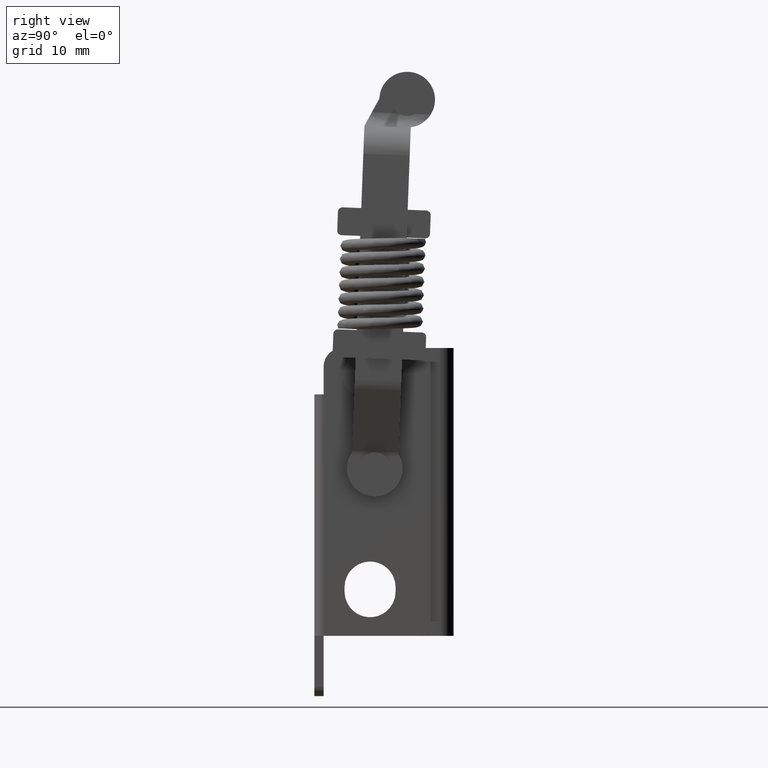
[diagram: clean part render]
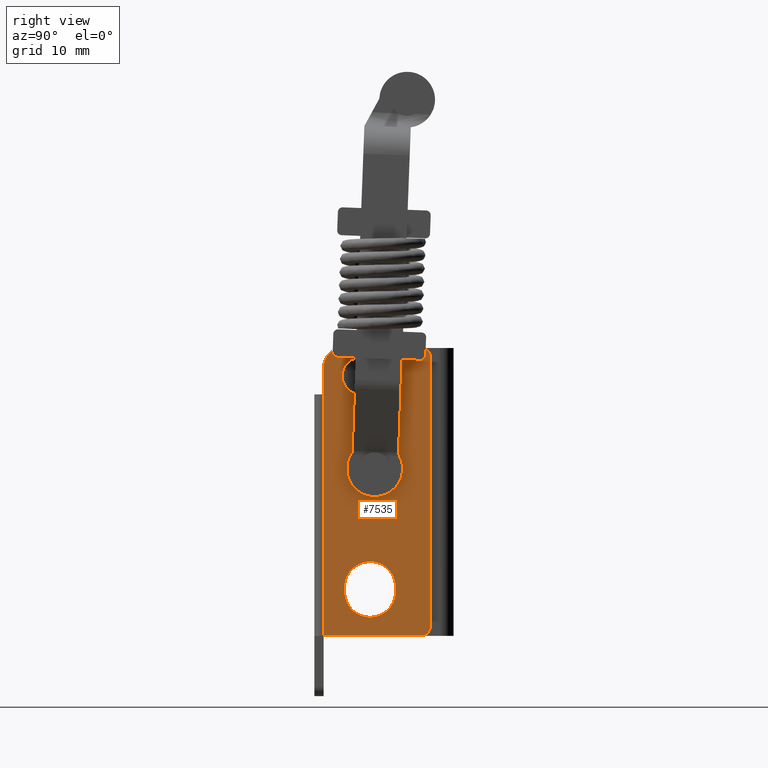
[diagram: same view with one face highlighted and labeled with its STEP entity id]
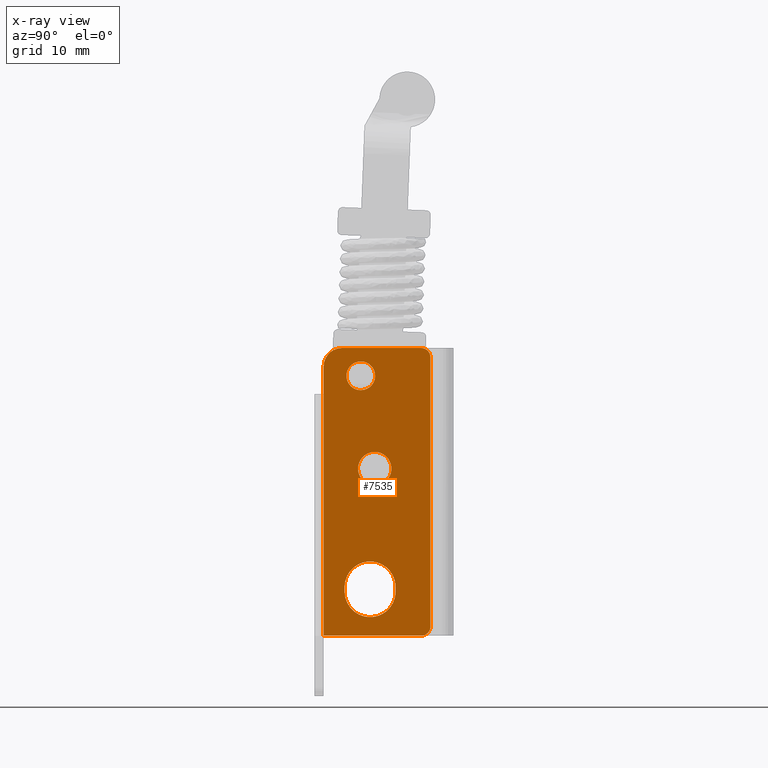
[diagram: x-ray of the same camera — body ghosted, the highlighted face saturated]
A machine part, right view. The second image highlights one B-rep face of the part: STEP entity #7535.
The next image is the same camera in x-ray: the body ghosted, the highlighted face saturated — about 0% of this face is hidden behind the body in this view.
In plain terms, the highlighted face is a freeform B-spline surface patch.
Its self-contained STEP definition (entity closure, byte-faithful):
#5597=CARTESIAN_POINT('',(8.999999999979691,-11.539164765860210,9.182953063772352));
#5598=VERTEX_POINT('',#5597);
#5604=CARTESIAN_POINT('',(8.999999999979691,-10.0,7.450000000025149));
#5605=VERTEX_POINT('',#5604);
#5606=CARTESIAN_POINT('',(8.999999999979691,-11.539164765860209,9.182953063772352));
#5607=CARTESIAN_POINT('',(8.999999999979691,-11.549999999999995,9.091797385515147));
#5608=CARTESIAN_POINT('',(8.999999999979691,-11.550000000000001,9.000000000025150));
#5609=CARTESIAN_POINT('',(8.999999999979691,-11.549999999999999,7.450000000025150));
#5610=CARTESIAN_POINT('',(8.999999999979691,-10.0,7.450000000025149));
#5618=(BOUNDED_CURVE()B_SPLINE_CURVE(2,(#5606,#5607,#5608,#5609,#5610),.UNSPECIFIED.,.F.,.U.)B_SPLINE_CURVE_WITH_KNOTS((3,2,3),(0.229562473509226,0.250000000000000,0.500000000000000),.UNSPECIFIED.)CURVE()GEOMETRIC_REPRESENTATION_ITEM()RATIONAL_B_SPLINE_CURVE((0.956026754175305,0.976055948326128,1.0,0.707106781186547,1.0))REPRESENTATION_ITEM(''));
#5619=EDGE_CURVE('',#5598,#5605,#5618,.T.);
#5621=CARTESIAN_POINT('',(8.999999999979689,-8.452891062465875,8.905374763422904));
#5622=VERTEX_POINT('',#5621);
#5623=CARTESIAN_POINT('',(8.999999999979691,-10.0,7.450000000025149));
#5624=CARTESIAN_POINT('',(8.999999999979691,-8.541905596906563,7.450000000025147));
#5625=CARTESIAN_POINT('',(8.999999999979689,-8.452891062465875,8.905374763422904));
#5633=(BOUNDED_CURVE()B_SPLINE_CURVE(2,(#5623,#5624,#5625),.UNSPECIFIED.,.F.,.U.)B_SPLINE_CURVE_WITH_KNOTS((3,3),(0.500000000000000,0.739332962169871),.UNSPECIFIED.)CURVE()GEOMETRIC_REPRESENTATION_ITEM()RATIONAL_B_SPLINE_CURVE((1.0,0.719603993367632,0.976072041518684))REPRESENTATION_ITEM(''));
#5634=EDGE_CURVE('',#5605,#5622,#5633,.T.);
#5708=CARTESIAN_POINT('',(8.999999999979691,-10.0,10.550000000025150));
#5709=VERTEX_POINT('',#5708);
#5710=CARTESIAN_POINT('',(8.999999999979689,-8.452891062465875,8.905374763422904));
#5711=CARTESIAN_POINT('',(8.999999999979689,-8.450000000000001,8.952643216588212));
#5712=CARTESIAN_POINT('',(8.999999999979691,-8.450000000000001,9.000000000025150));
#5713=CARTESIAN_POINT('',(8.999999999979691,-8.450000000000001,10.550000000025149));
#5714=CARTESIAN_POINT('',(8.999999999979691,-10.0,10.550000000025150));
#5722=(BOUNDED_CURVE()B_SPLINE_CURVE(2,(#5710,#5711,#5712,#5713,#5714),.UNSPECIFIED.,.F.,.U.)B_SPLINE_CURVE_WITH_KNOTS((3,2,3),(0.739332962169872,0.750000000000000,1.0),.UNSPECIFIED.)CURVE()GEOMETRIC_REPRESENTATION_ITEM()RATIONAL_B_SPLINE_CURVE((0.976072041518686,0.987502787818916,1.0,0.707106781186547,1.0))REPRESENTATION_ITEM(''));
#5723=EDGE_CURVE('',#5622,#5709,#5722,.T.);
#5725=CARTESIAN_POINT('',(8.999999999979691,-10.0,10.550000000025150));
#5726=CARTESIAN_POINT('',(8.999999999979691,-11.376670515171966,10.550000000025150));
#5727=CARTESIAN_POINT('',(8.999999999979691,-11.539164765860212,9.182953063772352));
#5735=(BOUNDED_CURVE()B_SPLINE_CURVE(2,(#5725,#5726,#5727),.UNSPECIFIED.,.F.,.U.)B_SPLINE_CURVE_WITH_KNOTS((3,3),(0.0,0.229562473509226),.UNSPECIFIED.)CURVE()GEOMETRIC_REPRESENTATION_ITEM()RATIONAL_B_SPLINE_CURVE((1.0,0.731050832860420,0.956026754175305))REPRESENTATION_ITEM(''));
#5736=EDGE_CURVE('',#5709,#5598,#5735,.T.);
#5794=CARTESIAN_POINT('',(8.999999999979693,-10.299931461512941,-0.984290172734483));
#5795=VERTEX_POINT('',#5794);
#5801=CARTESIAN_POINT('',(8.999999999979691,-8.500000000000000,-2.799997936925524));
#5802=VERTEX_POINT('',#5801);
#5803=CARTESIAN_POINT('',(8.999999999979693,-10.299931461512942,-0.984290172734483));
#5804=CARTESIAN_POINT('',(8.999999999979693,-10.300000000000004,-0.992143905154276));
#5805=CARTESIAN_POINT('',(8.999999999979691,-10.300000000000001,-0.999997936925524));
#5806=CARTESIAN_POINT('',(8.999999999979691,-10.300000000000001,-2.799997936925525));
#5807=CARTESIAN_POINT('',(8.999999999979691,-8.500000000000000,-2.799997936925524));
#5815=(BOUNDED_CURVE()B_SPLINE_CURVE(2,(#5803,#5804,#5805,#5806,#5807),.UNSPECIFIED.,.F.,.U.)B_SPLINE_CURVE_WITH_KNOTS((3,2,3),(0.248460105607477,0.250000000000000,0.500000000000000),.UNSPECIFIED.)CURVE()GEOMETRIC_REPRESENTATION_ITEM()RATIONAL_B_SPLINE_CURVE((0.996414027967252,0.998195901498965,1.0,0.707106781186547,1.0))REPRESENTATION_ITEM(''));
#5816=EDGE_CURVE('',#5795,#5802,#5815,.T.);
#5818=CARTESIAN_POINT('',(8.999999999979689,-6.713920815137880,-1.223428340859862));
#5819=VERTEX_POINT('',#5818);
#5820=CARTESIAN_POINT('',(8.999999999979691,-8.500000000000000,-2.799997936925524));
#5821=CARTESIAN_POINT('',(8.999999999979691,-6.911142520071428,-2.799997936925525));
#5822=CARTESIAN_POINT('',(8.999999999979689,-6.713920815137880,-1.223428340859862));
#5830=(BOUNDED_CURVE()B_SPLINE_CURVE(2,(#5820,#5821,#5822),.UNSPECIFIED.,.F.,.U.)B_SPLINE_CURVE_WITH_KNOTS((3,3),(0.500000000000000,0.728526070993296),.UNSPECIFIED.)CURVE()GEOMETRIC_REPRESENTATION_ITEM()RATIONAL_B_SPLINE_CURVE((1.0,0.732265053935928,0.954005430204851))REPRESENTATION_ITEM(''));
#5831=EDGE_CURVE('',#5802,#5819,#5830,.T.);
#5881=CARTESIAN_POINT('',(8.999999999979691,-8.500000000000000,0.800002063074476));
#5882=VERTEX_POINT('',#5881);
#5883=CARTESIAN_POINT('',(8.999999999979689,-6.713920815137880,-1.223428340859862));
#5884=CARTESIAN_POINT('',(8.999999999979691,-6.700000000000001,-1.112146806678690));
#5885=CARTESIAN_POINT('',(8.999999999979691,-6.700000000000001,-0.999997936925524));
#5886=CARTESIAN_POINT('',(8.999999999979691,-6.700000000000001,0.800002063074476));
#5887=CARTESIAN_POINT('',(8.999999999979691,-8.500000000000000,0.800002063074476));
#5895=(BOUNDED_CURVE()B_SPLINE_CURVE(2,(#5883,#5884,#5885,#5886,#5887),.UNSPECIFIED.,.F.,.U.)B_SPLINE_CURVE_WITH_KNOTS((3,2,3),(0.728526070993296,0.750000000000000,1.0),.UNSPECIFIED.)CURVE()GEOMETRIC_REPRESENTATION_ITEM()RATIONAL_B_SPLINE_CURVE((0.954005430204852,0.974841727250620,1.0,0.707106781186547,1.0))REPRESENTATION_ITEM(''));
#5896=EDGE_CURVE('',#5819,#5882,#5895,.T.);
#5898=CARTESIAN_POINT('',(8.999999999979691,-8.500000000000000,0.800002063074476));
#5899=CARTESIAN_POINT('',(8.999999999979691,-10.284360178488088,0.800002063074476));
#5900=CARTESIAN_POINT('',(8.999999999979693,-10.299931461512942,-0.984290172734483));
#5908=(BOUNDED_CURVE()B_SPLINE_CURVE(2,(#5898,#5899,#5900),.UNSPECIFIED.,.F.,.U.)B_SPLINE_CURVE_WITH_KNOTS((3,3),(0.0,0.248460105607477),.UNSPECIFIED.)CURVE()GEOMETRIC_REPRESENTATION_ITEM()RATIONAL_B_SPLINE_CURVE((1.0,0.708910879687583,0.996414027967252))REPRESENTATION_ITEM(''));
#5909=EDGE_CURVE('',#5882,#5795,#5908,.T.);
#6130=CARTESIAN_POINT('',(8.999999999979691,-11.750000000000000,-14.249997936925940));
#6131=VERTEX_POINT('',#6130);
#6137=CARTESIAN_POINT('',(8.999999999979691,-6.250000000000000,-14.249997936925640));
#6138=VERTEX_POINT('',#6137);
#6139=CARTESIAN_POINT('',(8.999999999979691,-11.750000000000000,-14.249997936925940));
#6140=CARTESIAN_POINT('',(8.999999999979691,-11.749999999999698,-16.999997936925649));
#6141=CARTESIAN_POINT('',(8.999999999979691,-9.0,-16.999997936925642));
#6142=CARTESIAN_POINT('',(8.999999999979691,-6.250000000000000,-16.999997936925649));
#6143=CARTESIAN_POINT('',(8.999999999979691,-6.249999999999999,-14.249997936925640));
#6151=(BOUNDED_CURVE()B_SPLINE_CURVE(2,(#6139,#6140,#6141,#6142,#6143),.UNSPECIFIED.,.F.,.U.)B_SPLINE_CURVE_WITH_KNOTS((3,2,3),(0.0,0.500000000000000,1.0),.UNSPECIFIED.)CURVE()GEOMETRIC_REPRESENTATION_ITEM()RATIONAL_B_SPLINE_CURVE((1.0,0.707106781186586,1.0,0.707106781186586,1.0))REPRESENTATION_ITEM(''));
#6152=EDGE_CURVE('',#6131,#6138,#6151,.T.);
#6186=CARTESIAN_POINT('',(8.999999999979691,-11.750000000000000,-13.749997936925640));
#6187=VERTEX_POINT('',#6186);
#6193=CARTESIAN_POINT('',(8.999999999979691,-11.750000000000000,-13.749997936925640));
#6194=CARTESIAN_POINT('',(8.999999999979691,-11.750000000000000,-14.249997936925940));
#6195=QUASI_UNIFORM_CURVE('',1,(#6193,#6194),.UNSPECIFIED.,.F.,.U.);
#6196=EDGE_CURVE('',#6187,#6131,#6195,.T.);
#6227=CARTESIAN_POINT('',(8.999999999979691,-6.250000000000000,-13.749997936925640));
#6228=VERTEX_POINT('',#6227);
#6234=CARTESIAN_POINT('',(8.999999999979691,-6.249999999999999,-13.749997936925640));
#6235=CARTESIAN_POINT('',(8.999999999979693,-6.249999999999998,-10.999997936925642));
#6236=CARTESIAN_POINT('',(8.999999999979691,-9.0,-10.999997936925640));
#6237=CARTESIAN_POINT('',(8.999999999979693,-11.750000000000002,-10.999997936925642));
#6238=CARTESIAN_POINT('',(8.999999999979691,-11.750000000000000,-13.749997936925640));
#6246=(BOUNDED_CURVE()B_SPLINE_CURVE(2,(#6234,#6235,#6236,#6237,#6238),.UNSPECIFIED.,.F.,.U.)B_SPLINE_CURVE_WITH_KNOTS((3,2,3),(0.0,0.500000000000000,1.0),.UNSPECIFIED.)CURVE()GEOMETRIC_REPRESENTATION_ITEM()RATIONAL_B_SPLINE_CURVE((1.0,0.707106781186548,1.0,0.707106781186548,1.0))REPRESENTATION_ITEM(''));
#6247=EDGE_CURVE('',#6228,#6187,#6246,.T.);
#6274=CARTESIAN_POINT('',(8.999999999979691,-6.250000000000000,-14.249997936925640));
#6275=CARTESIAN_POINT('',(8.999999999979691,-6.250000000000000,-13.749997936925640));
#6276=QUASI_UNIFORM_CURVE('',1,(#6274,#6275),.UNSPECIFIED.,.F.,.U.);
#6277=EDGE_CURVE('',#6138,#6228,#6276,.T.);
#6480=CARTESIAN_POINT('',(8.999999999979691,-2.500000000000000,11.000002063077320));
#6481=VERTEX_POINT('',#6480);
#6482=CARTESIAN_POINT('',(8.999999999979691,-3.500000000000490,12.000002063077320));
#6483=VERTEX_POINT('',#6482);
#6484=CARTESIAN_POINT('',(8.999999999979691,-2.500000000000000,11.000002063077320));
#6485=CARTESIAN_POINT('',(8.999999999979691,-2.500000000000000,11.414215625450556));
#6486=CARTESIAN_POINT('',(8.999999999979691,-2.792893218813626,11.707108844264040));
#6487=CARTESIAN_POINT('',(8.999999999979691,-3.085786437627252,12.000002063077527));
#6488=CARTESIAN_POINT('',(8.999999999979691,-3.500000000000490,12.000002063077320));
#6496=(BOUNDED_CURVE()B_SPLINE_CURVE(2,(#6484,#6485,#6486,#6487,#6488),.UNSPECIFIED.,.F.,.U.)B_SPLINE_CURVE_WITH_KNOTS((3,2,3),(0.0,0.500000000000000,1.0),.UNSPECIFIED.)CURVE()GEOMETRIC_REPRESENTATION_ITEM()RATIONAL_B_SPLINE_CURVE((1.0,0.923879532511240,1.0,0.923879532511240,1.0))REPRESENTATION_ITEM(''));
#6497=EDGE_CURVE('',#6481,#6483,#6496,.T.);
#6608=CARTESIAN_POINT('',(8.999999999979691,-12.000000000000981,12.000002063073159));
#6609=VERTEX_POINT('',#6608);
#6610=CARTESIAN_POINT('',(8.999999999979691,-14.0,10.000002063073159));
#6611=VERTEX_POINT('',#6610);
#6612=CARTESIAN_POINT('',(8.999999999979691,-12.000000000000981,12.000002063073159));
#6613=CARTESIAN_POINT('',(8.999999999979691,-14.000000000000002,12.000002063072181));
#6614=CARTESIAN_POINT('',(8.999999999979691,-14.0,10.000002063073159));
#6622=(BOUNDED_CURVE()B_SPLINE_CURVE(2,(#6612,#6613,#6614),.UNSPECIFIED.,.F.,.U.)CURVE()GEOMETRIC_REPRESENTATION_ITEM()QUASI_UNIFORM_CURVE()RATIONAL_B_SPLINE_CURVE((1.0,0.707106781186721,1.0))REPRESENTATION_ITEM(''));
#6623=EDGE_CURVE('',#6609,#6611,#6622,.T.);
#6730=CARTESIAN_POINT('',(8.999999999979691,-14.0,-18.999997936926651));
#6731=VERTEX_POINT('',#6730);
#6749=CARTESIAN_POINT('',(8.999999999979691,-14.0,7.000002063073369));
#6750=VERTEX_POINT('',#6749);
#6751=CARTESIAN_POINT('',(8.999999999979691,-14.0,7.000002063073369));
#6752=CARTESIAN_POINT('',(8.999999999979691,-14.0,-18.999997936926651));
#6753=QUASI_UNIFORM_CURVE('',1,(#6751,#6752),.UNSPECIFIED.,.F.,.U.);
#6754=EDGE_CURVE('',#6750,#6731,#6753,.T.);
#6854=CARTESIAN_POINT('',(8.999999999979691,-3.500000000000210,-18.999997936927599));
#6855=VERTEX_POINT('',#6854);
#6856=CARTESIAN_POINT('',(8.999999999979691,-2.500000000000115,-17.999997936927599));
#6857=VERTEX_POINT('',#6856);
#6858=CARTESIAN_POINT('',(8.999999999979691,-3.500000000000210,-18.999997936927599));
#6859=CARTESIAN_POINT('',(8.999999999979693,-2.500000000000115,-18.999997936927603));
#6860=CARTESIAN_POINT('',(8.999999999979691,-2.500000000000115,-17.999997936927599));
#6868=(BOUNDED_CURVE()B_SPLINE_CURVE(2,(#6858,#6859,#6860),.UNSPECIFIED.,.F.,.U.)CURVE()GEOMETRIC_REPRESENTATION_ITEM()QUASI_UNIFORM_CURVE()RATIONAL_B_SPLINE_CURVE((1.0,0.707106781186548,1.0))REPRESENTATION_ITEM(''));
#6869=EDGE_CURVE('',#6855,#6857,#6868,.T.);
#7070=CARTESIAN_POINT('',(8.999999999979691,-2.500000000000000,11.000002063077320));
#7071=CARTESIAN_POINT('',(8.999999999979691,-2.500000000000115,-17.999997936927599));
#7072=QUASI_UNIFORM_CURVE('',1,(#7070,#7071),.UNSPECIFIED.,.F.,.U.);
#7073=EDGE_CURVE('',#6481,#6857,#7072,.T.);
#7084=CARTESIAN_POINT('',(8.999999999979691,-12.000000000000981,12.000002063073159));
#7085=CARTESIAN_POINT('',(8.999999999979691,-3.500000000000490,12.000002063077320));
#7086=QUASI_UNIFORM_CURVE('',1,(#7084,#7085),.UNSPECIFIED.,.F.,.U.);
#7087=EDGE_CURVE('',#6609,#6483,#7086,.T.);
#7104=CARTESIAN_POINT('',(8.999999999979691,-14.0,7.000002063073369));
#7105=CARTESIAN_POINT('',(8.999999999979691,-14.0,10.000002063073159));
#7106=QUASI_UNIFORM_CURVE('',1,(#7104,#7105),.UNSPECIFIED.,.F.,.U.);
#7107=EDGE_CURVE('',#6750,#6611,#7106,.T.);
#7130=CARTESIAN_POINT('',(8.999999999979691,-3.500000000000210,-18.999997936927599));
#7131=CARTESIAN_POINT('',(8.999999999979691,-14.0,-18.999997936926651));
#7132=QUASI_UNIFORM_CURVE('',1,(#7130,#7131),.UNSPECIFIED.,.F.,.U.);
#7133=EDGE_CURVE('',#6855,#6731,#7132,.T.);
#7502=CARTESIAN_POINT('',(8.999999999979711,-14.574424977710770,-20.548448167849649));
#7503=CARTESIAN_POINT('',(8.999999999979711,-1.925574713835194,-20.548448167849649));
#7504=CARTESIAN_POINT('',(8.999999999979711,-14.574424977710770,13.548452848322571));
#7505=CARTESIAN_POINT('',(8.999999999979711,-1.925574713835194,13.548452848322571));
#7506=B_SPLINE_SURFACE_WITH_KNOTS('',1,1,((#7502,#7504),(#7503,#7505)),.UNSPECIFIED.,.F.,.F.,.U.,(2,2),(2,2),(0.0,12.648850263875580),(0.0,34.096901016172232),.UNSPECIFIED.);
#7507=ORIENTED_EDGE('',*,*,#7073,.F.);
#7508=ORIENTED_EDGE('',*,*,#6497,.T.);
#7509=ORIENTED_EDGE('',*,*,#7087,.F.);
#7510=ORIENTED_EDGE('',*,*,#6623,.T.);
#7511=ORIENTED_EDGE('',*,*,#7107,.F.);
#7512=ORIENTED_EDGE('',*,*,#6754,.T.);
#7513=ORIENTED_EDGE('',*,*,#7133,.F.);
#7514=ORIENTED_EDGE('',*,*,#6869,.T.);
#7515=EDGE_LOOP('',(#7507,#7508,#7509,#7510,#7511,#7512,#7513,#7514));
#7516=FACE_OUTER_BOUND('',#7515,.T.);
#7517=ORIENTED_EDGE('',*,*,#6277,.F.);
#7518=ORIENTED_EDGE('',*,*,#6152,.F.);
#7519=ORIENTED_EDGE('',*,*,#6196,.F.);
#7520=ORIENTED_EDGE('',*,*,#6247,.F.);
#7521=EDGE_LOOP('',(#7517,#7518,#7519,#7520));
#7522=FACE_BOUND('',#7521,.T.);
#7523=ORIENTED_EDGE('',*,*,#5909,.F.);
#7524=ORIENTED_EDGE('',*,*,#5896,.F.);
#7525=ORIENTED_EDGE('',*,*,#5831,.F.);
#7526=ORIENTED_EDGE('',*,*,#5816,.F.);
#7527=EDGE_LOOP('',(#7523,#7524,#7525,#7526));
#7528=FACE_BOUND('',#7527,.T.);
#7529=ORIENTED_EDGE('',*,*,#5634,.F.);
#7530=ORIENTED_EDGE('',*,*,#5619,.F.);
#7531=ORIENTED_EDGE('',*,*,#5736,.F.);
#7532=ORIENTED_EDGE('',*,*,#5723,.F.);
#7533=EDGE_LOOP('',(#7529,#7530,#7531,#7532));
#7534=FACE_BOUND('',#7533,.T.);
#7535=ADVANCED_FACE('',(#7516,#7522,#7528,#7534),#7506,.T.);